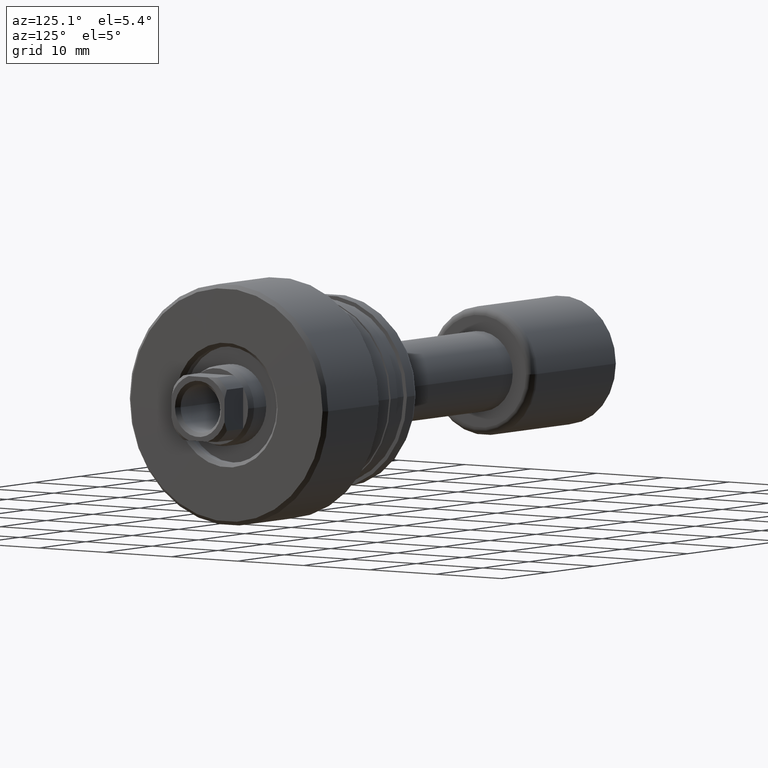
[diagram: clean part render]
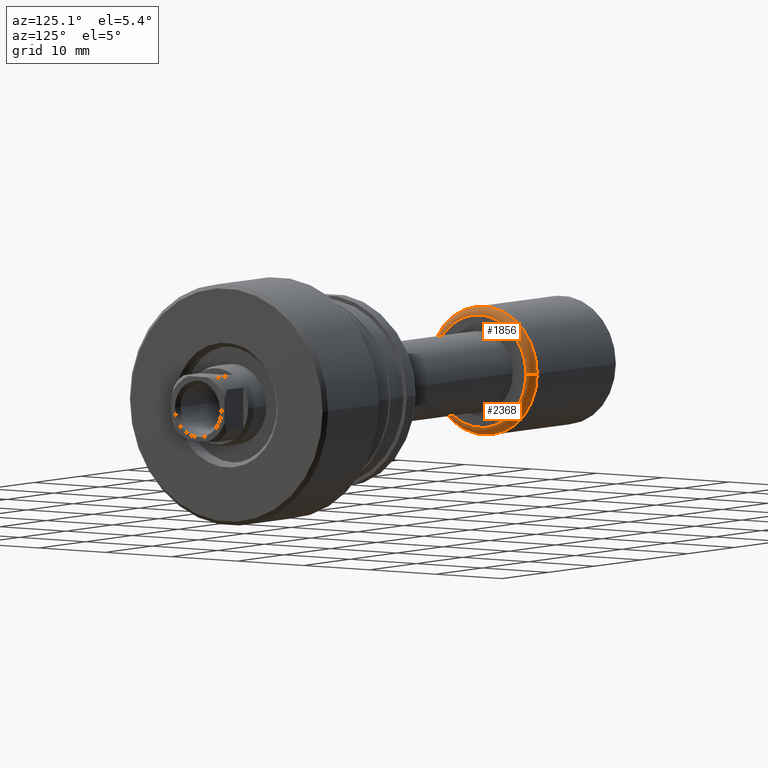
[diagram: same view with one multi-face feature highlighted, each face labeled with its STEP entity id]
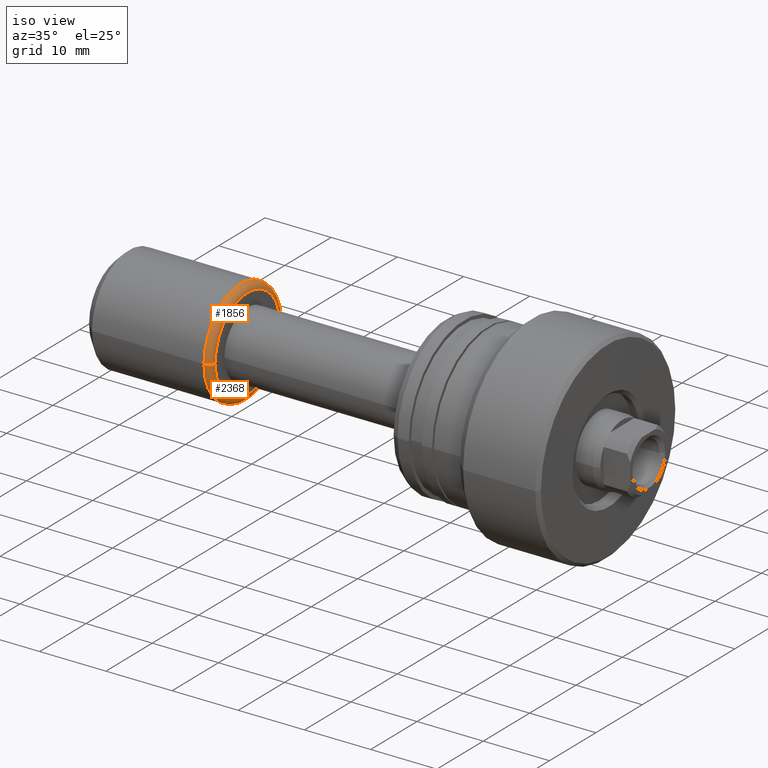
[diagram: same view with one multi-face feature highlighted, each face labeled with its STEP entity id]
A machine part, auxiliary view. The highlighted faces form ONE feature: a constant-radius fillet chain: 2 tangent blend faces with common blend radius 1 mm. The faces share edges in the B-rep.
A second angle (iso view) of the same feature is appended — it is thin or edge-on in the first view.
Their STEP definitions:
[1] entity #1856 (Torus):
#15 = ORIENTED_EDGE ( 'NONE', *, *, #1585, .T. ) ;
#133 = ORIENTED_EDGE ( 'NONE', *, *, #968, .F. ) ;
#170 = DIRECTION ( 'NONE',  ( 0.000000000000000000, -1.000000000000000000, 0.000000000000000000 ) ) ;
#217 = EDGE_LOOP ( 'NONE', ( #2043, #15, #2208, #133 ) ) ;
#284 = AXIS2_PLACEMENT_3D ( 'NONE', #541, #2240, #755 ) ;
#300 = DIRECTION ( 'NONE',  ( 0.000000000000000000, -1.000000000000000000, 0.000000000000000000 ) ) ;
#541 = CARTESIAN_POINT ( 'NONE',  ( 18.40000000000006253, 0.000000000000000000, 0.000000000000000000 ) ) ;
#543 = VERTEX_POINT ( 'NONE', #2165 ) ;
#581 = DIRECTION ( 'NONE',  ( 0.000000000000000000, -1.000000000000000000, -1.224646799147353454E-16 ) ) ;
#669 = CARTESIAN_POINT ( 'NONE',  ( 18.40000000000006253, 1.967957872607087643E-16, 0.000000000000000000 ) ) ;
#741 = DIRECTION ( 'NONE',  ( -1.000000000000000000, -1.069542322069065801E-17, -0.000000000000000000 ) ) ;
#755 = DIRECTION ( 'NONE',  ( 1.069542322069065801E-17, -1.000000000000000000, 0.000000000000000000 ) ) ;
#759 = CARTESIAN_POINT ( 'NONE',  ( 18.40000000000006253, 6.999999999999996447, 8.572527594031468259E-16 ) ) ;
#849 = VERTEX_POINT ( 'NONE', #1088 ) ;
#968 = EDGE_CURVE ( 'NONE', #849, #2414, #1481, .T. ) ;
#1003 = CIRCLE ( 'NONE', #1159, 7.999999999999996447 ) ;
#1034 = CARTESIAN_POINT ( 'NONE',  ( 18.40000000000006253, -6.999999999999996447, 0.000000000000000000 ) ) ;
#1043 = TOROIDAL_SURFACE ( 'NONE', #284, 6.999999999999996447, 1.000000000000000444 ) ;
#1088 = CARTESIAN_POINT ( 'NONE',  ( 19.40000000000006253, -6.999999999999996447, 0.000000000000000000 ) ) ;
#1113 = VERTEX_POINT ( 'NONE', #1138 ) ;
#1115 = CARTESIAN_POINT ( 'NONE',  ( 19.40000000000006253, 2.074912104813994331E-16, 0.000000000000000000 ) ) ;
#1120 = CIRCLE ( 'NONE', #2157, 1.000000000000000000 ) ;
#1136 = EDGE_CURVE ( 'NONE', #849, #543, #1761, .T. ) ;
#1138 = CARTESIAN_POINT ( 'NONE',  ( 18.40000000000006253, 7.999999999999996447, 9.797174393178821713E-16 ) ) ;
#1159 = AXIS2_PLACEMENT_3D ( 'NONE', #669, #1441, #300 ) ;
#1278 = AXIS2_PLACEMENT_3D ( 'NONE', #1034, #1568, #1779 ) ;
#1353 = EDGE_CURVE ( 'NONE', #2414, #1113, #1003, .T. ) ;
#1441 = DIRECTION ( 'NONE',  ( -1.000000000000000000, -1.069542322069065801E-17, -0.000000000000000000 ) ) ;
#1481 = CIRCLE ( 'NONE', #1278, 1.000000000000000888 ) ;
#1568 = DIRECTION ( 'NONE',  ( 0.000000000000000000, 0.000000000000000000, -1.000000000000000000 ) ) ;
#1585 = EDGE_CURVE ( 'NONE', #543, #1113, #1120, .T. ) ;
#1761 = CIRCLE ( 'NONE', #1801, 6.999999999999996447 ) ;
#1779 = DIRECTION ( 'NONE',  ( -1.000000000000000000, 0.000000000000000000, 0.000000000000000000 ) ) ;
#1801 = AXIS2_PLACEMENT_3D ( 'NONE', #1115, #741, #170 ) ;
#1856 = ADVANCED_FACE ( 'NONE', ( #1900 ), #1043, .T. ) ;
#1900 = FACE_OUTER_BOUND ( 'NONE', #217, .T. ) ;
#1914 = DIRECTION ( 'NONE',  ( 1.309811581274509052E-33, -1.224646799147353207E-16, 1.000000000000000000 ) ) ;
#2043 = ORIENTED_EDGE ( 'NONE', *, *, #1136, .T. ) ;
#2090 = CARTESIAN_POINT ( 'NONE',  ( 18.40000000000006253, -7.999999999999996447, 0.000000000000000000 ) ) ;
#2157 = AXIS2_PLACEMENT_3D ( 'NONE', #759, #1914, #581 ) ;
#2165 = CARTESIAN_POINT ( 'NONE',  ( 19.40000000000006253, 6.999999999999996447, 9.184850993605144000E-16 ) ) ;
#2208 = ORIENTED_EDGE ( 'NONE', *, *, #1353, .F. ) ;
#2240 = DIRECTION ( 'NONE',  ( -1.000000000000000000, -1.069542322069065801E-17, -0.000000000000000000 ) ) ;
#2414 = VERTEX_POINT ( 'NONE', #2090 ) ;
[2] entity #2368 (Torus):
#125 = TOROIDAL_SURFACE ( 'NONE', #209, 6.999999999999996447, 1.000000000000000444 ) ;
#209 = AXIS2_PLACEMENT_3D ( 'NONE', #1530, #1721, #521 ) ;
#314 = CIRCLE ( 'NONE', #2226, 6.999999999999996447 ) ;
#370 = FACE_OUTER_BOUND ( 'NONE', #2152, .T. ) ;
#392 = CARTESIAN_POINT ( 'NONE',  ( 18.40000000000006253, 1.967957872607087643E-16, 0.000000000000000000 ) ) ;
#521 = DIRECTION ( 'NONE',  ( 1.069542322069065801E-17, -1.000000000000000000, 0.000000000000000000 ) ) ;
#543 = VERTEX_POINT ( 'NONE', #2165 ) ;
#581 = DIRECTION ( 'NONE',  ( 0.000000000000000000, -1.000000000000000000, -1.224646799147353454E-16 ) ) ;
#696 = ORIENTED_EDGE ( 'NONE', *, *, #1585, .F. ) ;
#759 = CARTESIAN_POINT ( 'NONE',  ( 18.40000000000006253, 6.999999999999996447, 8.572527594031468259E-16 ) ) ;
#846 = EDGE_CURVE ( 'NONE', #543, #849, #314, .T. ) ;
#849 = VERTEX_POINT ( 'NONE', #1088 ) ;
#889 = DIRECTION ( 'NONE',  ( 0.000000000000000000, -1.000000000000000000, 0.000000000000000000 ) ) ;
#968 = EDGE_CURVE ( 'NONE', #849, #2414, #1481, .T. ) ;
#1005 = DIRECTION ( 'NONE',  ( 0.000000000000000000, -1.000000000000000000, 0.000000000000000000 ) ) ;
#1034 = CARTESIAN_POINT ( 'NONE',  ( 18.40000000000006253, -6.999999999999996447, 0.000000000000000000 ) ) ;
#1050 = ORIENTED_EDGE ( 'NONE', *, *, #1240, .F. ) ;
#1088 = CARTESIAN_POINT ( 'NONE',  ( 19.40000000000006253, -6.999999999999996447, 0.000000000000000000 ) ) ;
#1113 = VERTEX_POINT ( 'NONE', #1138 ) ;
#1120 = CIRCLE ( 'NONE', #2157, 1.000000000000000000 ) ;
#1138 = CARTESIAN_POINT ( 'NONE',  ( 18.40000000000006253, 7.999999999999996447, 9.797174393178821713E-16 ) ) ;
#1240 = EDGE_CURVE ( 'NONE', #1113, #2414, #1880, .T. ) ;
#1264 = CARTESIAN_POINT ( 'NONE',  ( 19.40000000000006253, 2.074912104813994331E-16, 0.000000000000000000 ) ) ;
#1278 = AXIS2_PLACEMENT_3D ( 'NONE', #1034, #1568, #1779 ) ;
#1324 = AXIS2_PLACEMENT_3D ( 'NONE', #392, #2138, #1005 ) ;
#1481 = CIRCLE ( 'NONE', #1278, 1.000000000000000888 ) ;
#1530 = CARTESIAN_POINT ( 'NONE',  ( 18.40000000000006253, 0.000000000000000000, 0.000000000000000000 ) ) ;
#1568 = DIRECTION ( 'NONE',  ( 0.000000000000000000, 0.000000000000000000, -1.000000000000000000 ) ) ;
#1585 = EDGE_CURVE ( 'NONE', #543, #1113, #1120, .T. ) ;
#1631 = ORIENTED_EDGE ( 'NONE', *, *, #846, .T. ) ;
#1721 = DIRECTION ( 'NONE',  ( -1.000000000000000000, -1.069542322069065801E-17, -0.000000000000000000 ) ) ;
#1779 = DIRECTION ( 'NONE',  ( -1.000000000000000000, 0.000000000000000000, 0.000000000000000000 ) ) ;
#1880 = CIRCLE ( 'NONE', #1324, 7.999999999999996447 ) ;
#1914 = DIRECTION ( 'NONE',  ( 1.309811581274509052E-33, -1.224646799147353207E-16, 1.000000000000000000 ) ) ;
#1985 = ORIENTED_EDGE ( 'NONE', *, *, #968, .T. ) ;
#2090 = CARTESIAN_POINT ( 'NONE',  ( 18.40000000000006253, -7.999999999999996447, 0.000000000000000000 ) ) ;
#2138 = DIRECTION ( 'NONE',  ( -1.000000000000000000, -1.069542322069065801E-17, -0.000000000000000000 ) ) ;
#2152 = EDGE_LOOP ( 'NONE', ( #696, #1631, #1985, #1050 ) ) ;
#2157 = AXIS2_PLACEMENT_3D ( 'NONE', #759, #1914, #581 ) ;
#2165 = CARTESIAN_POINT ( 'NONE',  ( 19.40000000000006253, 6.999999999999996447, 9.184850993605144000E-16 ) ) ;
#2216 = DIRECTION ( 'NONE',  ( -1.000000000000000000, -1.069542322069065801E-17, -0.000000000000000000 ) ) ;
#2226 = AXIS2_PLACEMENT_3D ( 'NONE', #1264, #2216, #889 ) ;
#2368 = ADVANCED_FACE ( 'NONE', ( #370 ), #125, .T. ) ;
#2414 = VERTEX_POINT ( 'NONE', #2090 ) ;